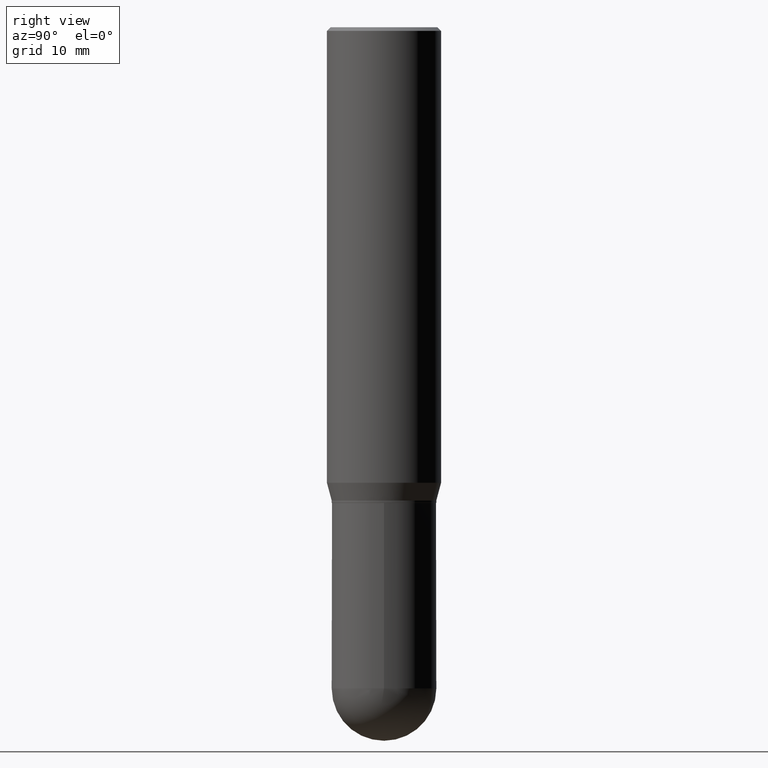
[diagram: clean part render]
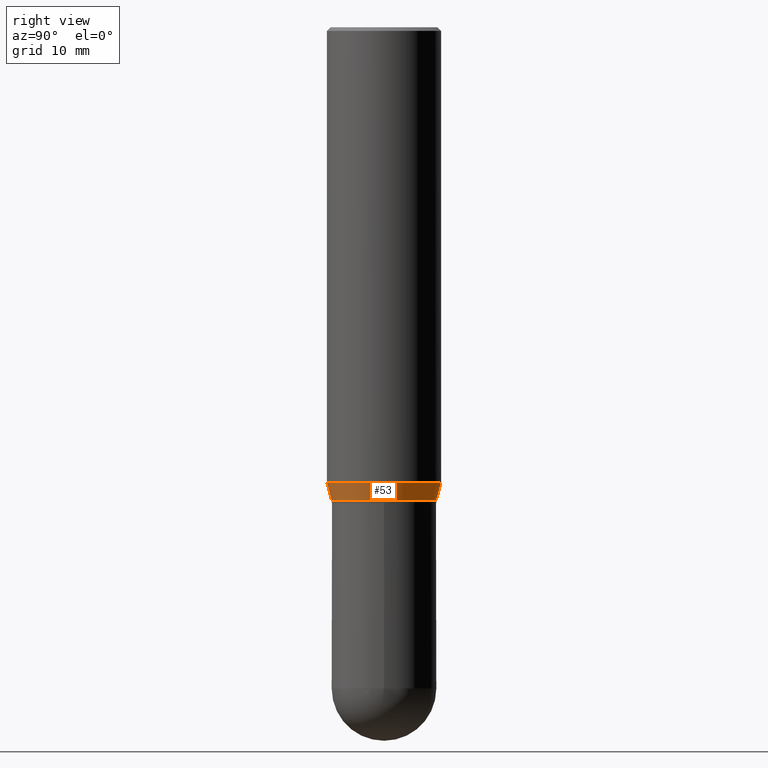
[diagram: same view with one face highlighted and labeled with its STEP entity id]
A machine part, right view. The second image highlights one B-rep face of the part: STEP entity #53.
In plain terms, the highlighted conical surface has half-angle 15 deg.
Its self-contained STEP definition (entity closure, byte-faithful):
#1 = VERTEX_POINT ( 'NONE', #237 ) ;
#5 = ORIENTED_EDGE ( 'NONE', *, *, #281, .F. ) ;
#27 = CARTESIAN_POINT ( 'NONE',  ( 1.538680294288542061E-15, 0.2165499999999928316, -1.958500000000000796 ) ) ;
#39 = EDGE_CURVE ( 'NONE', #398, #228, #435, .T. ) ;
#40 = CARTESIAN_POINT ( 'NONE',  ( -1.649375784469449785E-15, -0.2362000000000065436, -1.885165201631269660 ) ) ;
#42 = EDGE_LOOP ( 'NONE', ( #152, #203, #512, #5 ) ) ;
#51 = DIRECTION ( 'NONE',  ( -2.445645617895871651E-29, 3.491228134409875712E-15, 1.000000000000000000 ) ) ;
#53 = ADVANCED_FACE ( 'NONE', ( #98 ), #259, .T. ) ;
#59 = VECTOR ( 'NONE', #349, 39.37007874015748143 ) ;
#98 = FACE_OUTER_BOUND ( 'NONE', #42, .T. ) ;
#126 = AXIS2_PLACEMENT_3D ( 'NONE', #172, #404, #198 ) ;
#152 = ORIENTED_EDGE ( 'NONE', *, *, #39, .T. ) ;
#166 = CARTESIAN_POINT ( 'NONE',  ( -1.512160567852910730E-15, -0.2165500000000064873, -1.958499999999999019 ) ) ;
#172 = CARTESIAN_POINT ( 'NONE',  ( 4.789796942649064112E-29, -6.837570301241741551E-15, -1.958499999999999908 ) ) ;
#180 = DIRECTION ( 'NONE',  ( -2.445645617895871651E-29, 3.491228134409875712E-15, 1.000000000000000000 ) ) ;
#191 = VECTOR ( 'NONE', #407, 39.37007874015748143 ) ;
#198 = DIRECTION ( 'NONE',  ( -6.982962677686265922E-15, -1.000000000000000000, 3.784596620176773299E-15 ) ) ;
#203 = ORIENTED_EDGE ( 'NONE', *, *, #448, .T. ) ;
#207 = CARTESIAN_POINT ( 'NONE',  ( 4.789796942649064112E-29, -6.837570301241741551E-15, -1.958499999999999908 ) ) ;
#218 = DIRECTION ( 'NONE',  ( -6.982962677686265922E-15, -1.000000000000000000, 3.784596620176773299E-15 ) ) ;
#228 = VERTEX_POINT ( 'NONE', #329 ) ;
#235 = CARTESIAN_POINT ( 'NONE',  ( 4.610446014379303463E-29, -6.581541789945557282E-15, -1.885165201631270548 ) ) ;
#237 = CARTESIAN_POINT ( 'NONE',  ( 1.678301941865402543E-15, 0.2361999999999934430, -1.885165201631271215 ) ) ;
#249 = LINE ( 'NONE', #27, #191 ) ;
#257 = CARTESIAN_POINT ( 'NONE',  ( -1.512160567852910730E-15, -0.2165500000000064873, -1.958499999999999019 ) ) ;
#259 = CONICAL_SURFACE ( 'NONE', #400, 0.2165499999999996594, 0.2617993877991502405 ) ;
#281 = EDGE_CURVE ( 'NONE', #398, #408, #469, .T. ) ;
#329 = CARTESIAN_POINT ( 'NONE',  ( 1.608491118076972302E-15, 0.2165499999999928316, -1.958500000000000796 ) ) ;
#345 = AXIS2_PLACEMENT_3D ( 'NONE', #235, #51, #428 ) ;
#349 = DIRECTION ( 'NONE',  ( -1.807323732225329745E-15, -0.2588190451025181305, 0.9659258262890689783 ) ) ;
#371 = EDGE_CURVE ( 'NONE', #408, #1, #473, .T. ) ;
#398 = VERTEX_POINT ( 'NONE', #257 ) ;
#400 = AXIS2_PLACEMENT_3D ( 'NONE', #207, #180, #218 ) ;
#404 = DIRECTION ( 'NONE',  ( -2.445645617895871651E-29, 3.491228134409875712E-15, 1.000000000000000000 ) ) ;
#407 = DIRECTION ( 'NONE',  ( 1.839019923739599921E-15, 0.2588190451025249028, 0.9659258262890670910 ) ) ;
#408 = VERTEX_POINT ( 'NONE', #40 ) ;
#428 = DIRECTION ( 'NONE',  ( -6.982962677686265922E-15, -1.000000000000000000, 3.469747663417777397E-15 ) ) ;
#435 = CIRCLE ( 'NONE', #126, 0.2165499999999996594 ) ;
#448 = EDGE_CURVE ( 'NONE', #228, #1, #249, .T. ) ;
#469 = LINE ( 'NONE', #166, #59 ) ;
#473 = CIRCLE ( 'NONE', #345, 0.2361999999999999933 ) ;
#512 = ORIENTED_EDGE ( 'NONE', *, *, #371, .F. ) ;